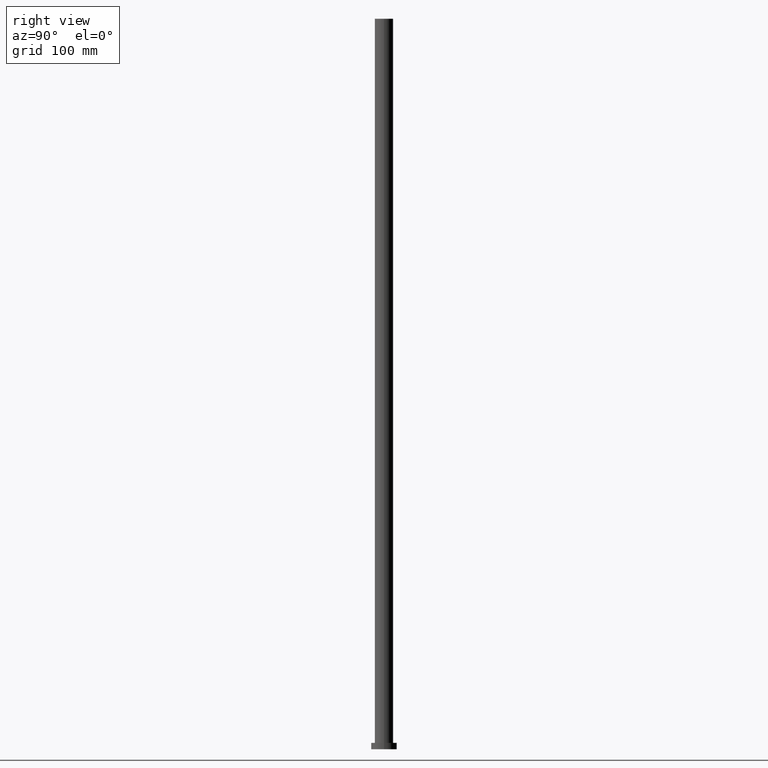
[diagram: clean part render]
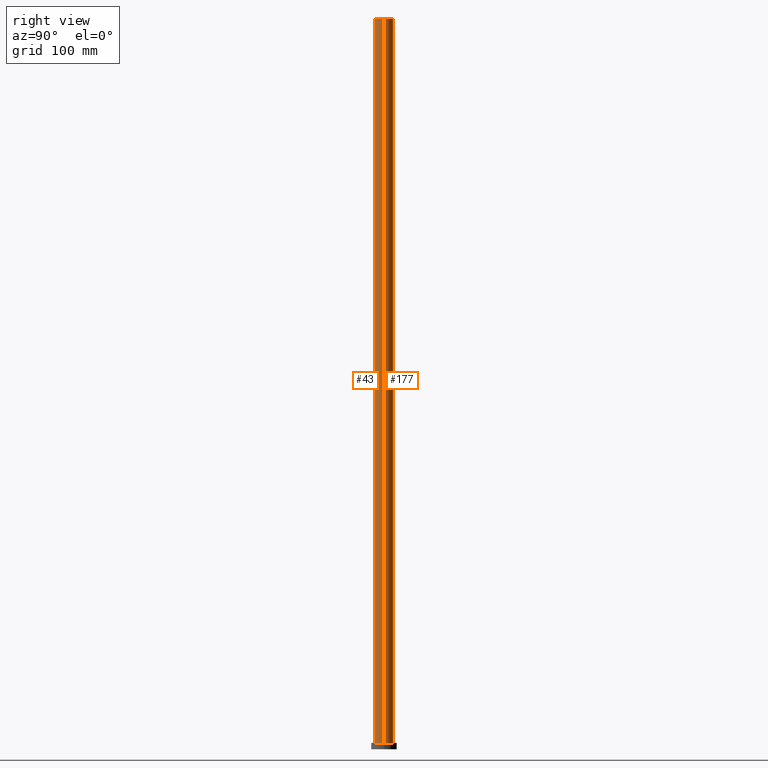
[diagram: same view with one multi-face feature highlighted, each face labeled with its STEP entity id]
A machine part, right view. The highlighted faces form ONE feature: a constant-radius fillet chain: 2 tangent blend faces with common blend radius 10 mm. The faces share edges in the B-rep.
Their STEP definitions:
[1] entity #43 (Cylinder):
#32 = DIRECTION ( 'NONE',  ( 0.000000000000000000, 0.000000000000000000, 1.000000000000000000 ) ) ;
#36 = CYLINDRICAL_SURFACE ( 'NONE', #126, 10.00000000000000000 ) ;
#43 = ADVANCED_FACE ( 'NONE', ( #75 ), #36, .T. ) ;
#46 = VERTEX_POINT ( 'NONE', #174 ) ;
#57 = CARTESIAN_POINT ( 'NONE',  ( 0.000000000000000000, 0.000000000000000000, 800.0000000000000000 ) ) ;
#59 = EDGE_CURVE ( 'NONE', #165, #240, #145, .T. ) ;
#66 = ORIENTED_EDGE ( 'NONE', *, *, #248, .T. ) ;
#75 = FACE_OUTER_BOUND ( 'NONE', #210, .T. ) ;
#78 = CARTESIAN_POINT ( 'NONE',  ( 10.00000000000000000, 1.224646799147353256E-15, 800.0000000000000000 ) ) ;
#81 = CIRCLE ( 'NONE', #184, 10.00000000000000000 ) ;
#89 = EDGE_CURVE ( 'NONE', #240, #46, #151, .T. ) ;
#94 = DIRECTION ( 'NONE',  ( -0.000000000000000000, -0.000000000000000000, -1.000000000000000000 ) ) ;
#116 = DIRECTION ( 'NONE',  ( -0.000000000000000000, -0.000000000000000000, -1.000000000000000000 ) ) ;
#120 = VECTOR ( 'NONE', #94, 1000.000000000000000 ) ;
#126 = AXIS2_PLACEMENT_3D ( 'NONE', #57, #116, #154 ) ;
#131 = ORIENTED_EDGE ( 'NONE', *, *, #150, .T. ) ;
#132 = DIRECTION ( 'NONE',  ( -0.000000000000000000, -0.000000000000000000, -1.000000000000000000 ) ) ;
#139 = DIRECTION ( 'NONE',  ( 0.000000000000000000, 0.000000000000000000, 1.000000000000000000 ) ) ;
#142 = ORIENTED_EDGE ( 'NONE', *, *, #59, .F. ) ;
#145 = CIRCLE ( 'NONE', #155, 10.00000000000000000 ) ;
#150 = EDGE_CURVE ( 'NONE', #165, #188, #194, .T. ) ;
#151 = LINE ( 'NONE', #235, #120 ) ;
#154 = DIRECTION ( 'NONE',  ( -1.000000000000000000, 0.000000000000000000, 0.000000000000000000 ) ) ;
#155 = AXIS2_PLACEMENT_3D ( 'NONE', #230, #32, #233 ) ;
#165 = VERTEX_POINT ( 'NONE', #169 ) ;
#168 = CARTESIAN_POINT ( 'NONE',  ( -10.00000000000000000, 0.000000000000000000, 800.0000000000000000 ) ) ;
#169 = CARTESIAN_POINT ( 'NONE',  ( -10.00000000000000000, 0.000000000000000000, 800.0000000000000000 ) ) ;
#174 = CARTESIAN_POINT ( 'NONE',  ( 10.00000000000000000, 1.224646799147353256E-15, 7.000000000000000000 ) ) ;
#178 = CARTESIAN_POINT ( 'NONE',  ( 0.000000000000000000, 0.000000000000000000, 7.000000000000000000 ) ) ;
#184 = AXIS2_PLACEMENT_3D ( 'NONE', #178, #139, #254 ) ;
#188 = VERTEX_POINT ( 'NONE', #238 ) ;
#194 = LINE ( 'NONE', #168, #234 ) ;
#210 = EDGE_LOOP ( 'NONE', ( #226, #142, #131, #66 ) ) ;
#226 = ORIENTED_EDGE ( 'NONE', *, *, #89, .F. ) ;
#230 = CARTESIAN_POINT ( 'NONE',  ( 0.000000000000000000, 0.000000000000000000, 800.0000000000000000 ) ) ;
#233 = DIRECTION ( 'NONE',  ( 1.000000000000000000, 0.000000000000000000, 0.000000000000000000 ) ) ;
#234 = VECTOR ( 'NONE', #132, 1000.000000000000000 ) ;
#235 = CARTESIAN_POINT ( 'NONE',  ( 10.00000000000000000, 1.224646799147353256E-15, 800.0000000000000000 ) ) ;
#238 = CARTESIAN_POINT ( 'NONE',  ( -10.00000000000000000, 0.000000000000000000, 7.000000000000000000 ) ) ;
#240 = VERTEX_POINT ( 'NONE', #78 ) ;
#248 = EDGE_CURVE ( 'NONE', #188, #46, #81, .T. ) ;
#254 = DIRECTION ( 'NONE',  ( 1.000000000000000000, 0.000000000000000000, 0.000000000000000000 ) ) ;
[2] entity #177 (Cylinder):
#11 = DIRECTION ( 'NONE',  ( 1.000000000000000000, 0.000000000000000000, 0.000000000000000000 ) ) ;
#31 = ORIENTED_EDGE ( 'NONE', *, *, #89, .T. ) ;
#35 = DIRECTION ( 'NONE',  ( 1.000000000000000000, 0.000000000000000000, 0.000000000000000000 ) ) ;
#46 = VERTEX_POINT ( 'NONE', #174 ) ;
#55 = CARTESIAN_POINT ( 'NONE',  ( 0.000000000000000000, 0.000000000000000000, 7.000000000000000000 ) ) ;
#61 = AXIS2_PLACEMENT_3D ( 'NONE', #249, #73, #152 ) ;
#62 = EDGE_CURVE ( 'NONE', #46, #188, #200, .T. ) ;
#65 = AXIS2_PLACEMENT_3D ( 'NONE', #213, #195, #11 ) ;
#69 = EDGE_LOOP ( 'NONE', ( #159, #31, #146, #110 ) ) ;
#73 = DIRECTION ( 'NONE',  ( -0.000000000000000000, -0.000000000000000000, -1.000000000000000000 ) ) ;
#78 = CARTESIAN_POINT ( 'NONE',  ( 10.00000000000000000, 1.224646799147353256E-15, 800.0000000000000000 ) ) ;
#89 = EDGE_CURVE ( 'NONE', #240, #46, #151, .T. ) ;
#93 = FACE_OUTER_BOUND ( 'NONE', #69, .T. ) ;
#94 = DIRECTION ( 'NONE',  ( -0.000000000000000000, -0.000000000000000000, -1.000000000000000000 ) ) ;
#110 = ORIENTED_EDGE ( 'NONE', *, *, #150, .F. ) ;
#113 = CIRCLE ( 'NONE', #65, 10.00000000000000000 ) ;
#120 = VECTOR ( 'NONE', #94, 1000.000000000000000 ) ;
#132 = DIRECTION ( 'NONE',  ( -0.000000000000000000, -0.000000000000000000, -1.000000000000000000 ) ) ;
#136 = DIRECTION ( 'NONE',  ( 0.000000000000000000, 0.000000000000000000, 1.000000000000000000 ) ) ;
#146 = ORIENTED_EDGE ( 'NONE', *, *, #62, .T. ) ;
#150 = EDGE_CURVE ( 'NONE', #165, #188, #194, .T. ) ;
#151 = LINE ( 'NONE', #235, #120 ) ;
#152 = DIRECTION ( 'NONE',  ( -1.000000000000000000, 0.000000000000000000, 0.000000000000000000 ) ) ;
#158 = EDGE_CURVE ( 'NONE', #240, #165, #113, .T. ) ;
#159 = ORIENTED_EDGE ( 'NONE', *, *, #158, .F. ) ;
#165 = VERTEX_POINT ( 'NONE', #169 ) ;
#168 = CARTESIAN_POINT ( 'NONE',  ( -10.00000000000000000, 0.000000000000000000, 800.0000000000000000 ) ) ;
#169 = CARTESIAN_POINT ( 'NONE',  ( -10.00000000000000000, 0.000000000000000000, 800.0000000000000000 ) ) ;
#170 = CYLINDRICAL_SURFACE ( 'NONE', #61, 10.00000000000000000 ) ;
#174 = CARTESIAN_POINT ( 'NONE',  ( 10.00000000000000000, 1.224646799147353256E-15, 7.000000000000000000 ) ) ;
#177 = ADVANCED_FACE ( 'NONE', ( #93 ), #170, .T. ) ;
#188 = VERTEX_POINT ( 'NONE', #238 ) ;
#194 = LINE ( 'NONE', #168, #234 ) ;
#195 = DIRECTION ( 'NONE',  ( 0.000000000000000000, 0.000000000000000000, 1.000000000000000000 ) ) ;
#200 = CIRCLE ( 'NONE', #217, 10.00000000000000000 ) ;
#213 = CARTESIAN_POINT ( 'NONE',  ( 0.000000000000000000, 0.000000000000000000, 800.0000000000000000 ) ) ;
#217 = AXIS2_PLACEMENT_3D ( 'NONE', #55, #136, #35 ) ;
#234 = VECTOR ( 'NONE', #132, 1000.000000000000000 ) ;
#235 = CARTESIAN_POINT ( 'NONE',  ( 10.00000000000000000, 1.224646799147353256E-15, 800.0000000000000000 ) ) ;
#238 = CARTESIAN_POINT ( 'NONE',  ( -10.00000000000000000, 0.000000000000000000, 7.000000000000000000 ) ) ;
#240 = VERTEX_POINT ( 'NONE', #78 ) ;
#249 = CARTESIAN_POINT ( 'NONE',  ( 0.000000000000000000, 0.000000000000000000, 800.0000000000000000 ) ) ;